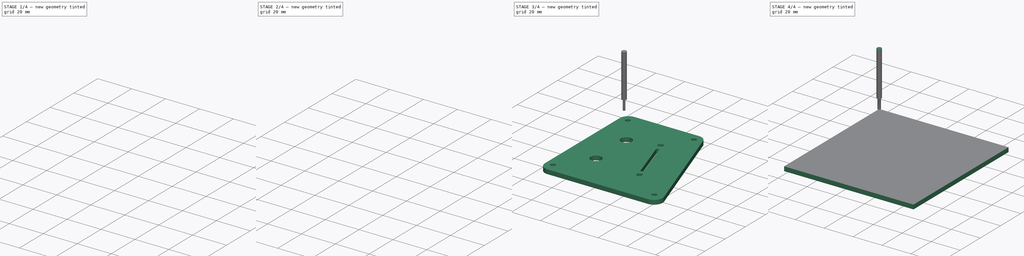
[diagram: build sequence overview — one tinted view per stage of 4, left to right]
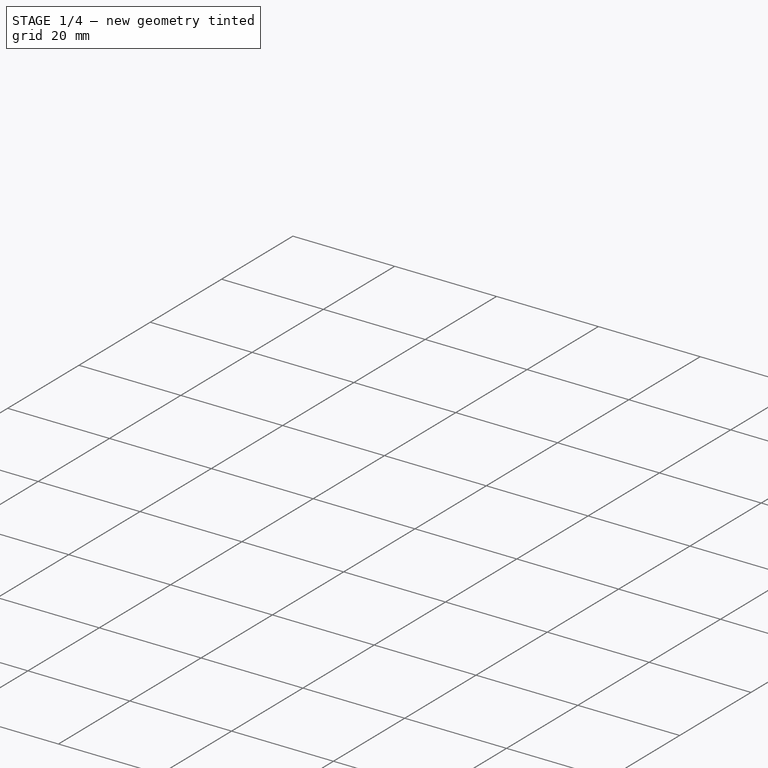
[diagram: stage 1 of 4 — iso view after this stage's code; geometry added in this stage tinted green]
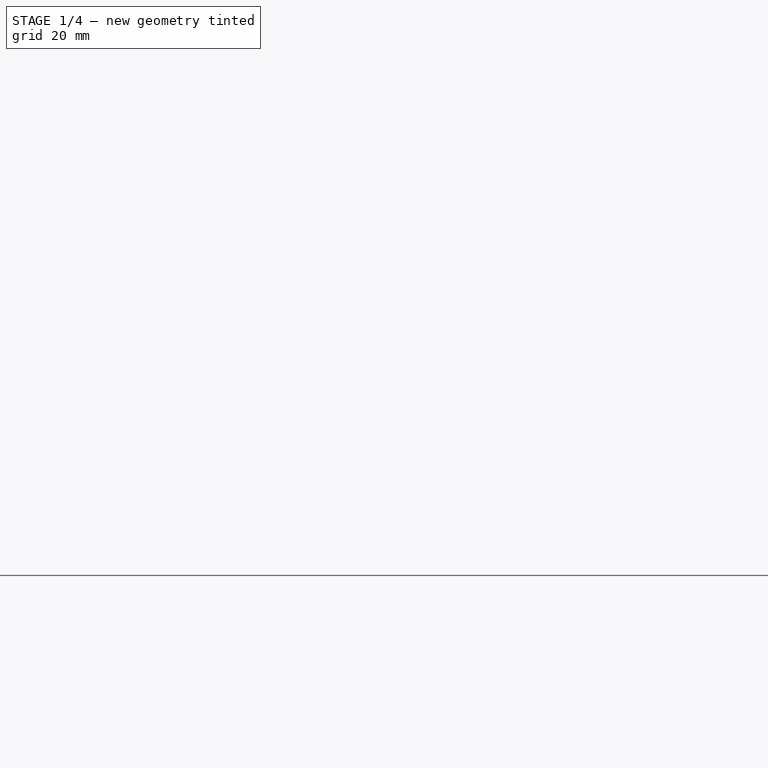
[diagram: stage 1 of 4 — front view after this stage's code; geometry added in this stage tinted green]
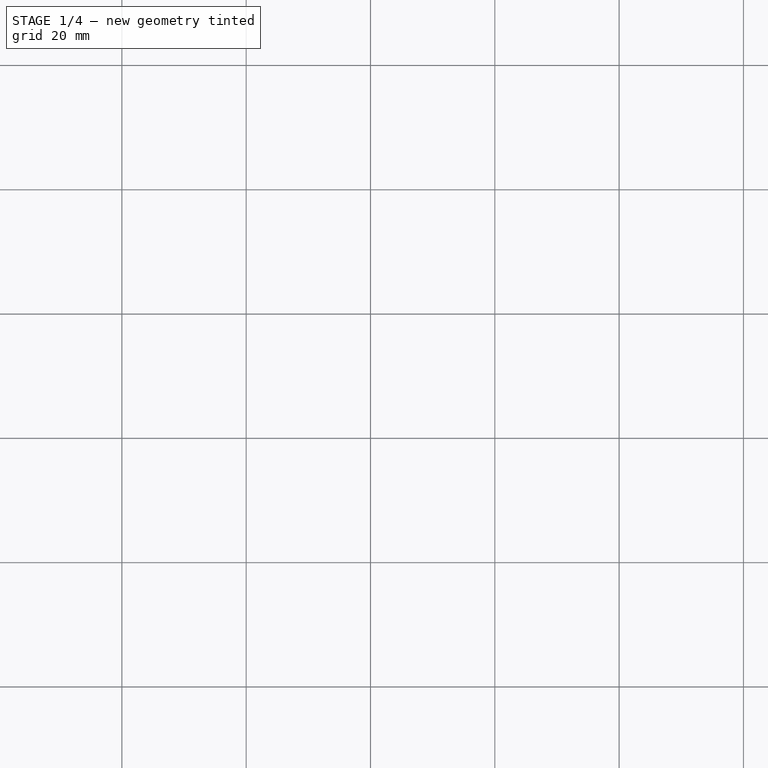
[diagram: stage 1 of 4 — top view after this stage's code; geometry added in this stage tinted green]
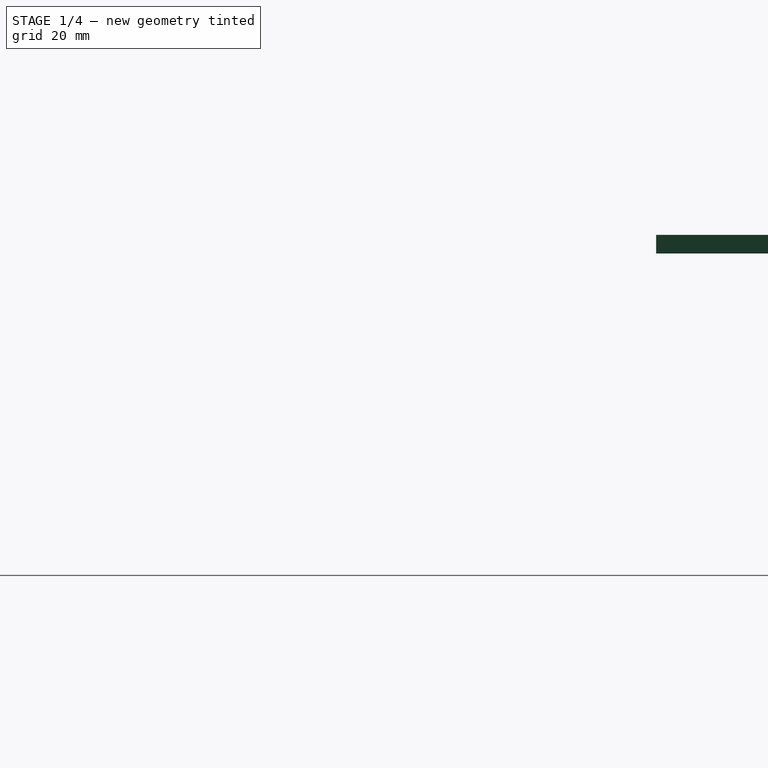
[diagram: stage 1 of 4 — right view after this stage's code; geometry added in this stage tinted green]
FCSTD DOCUMENT  (FreeCAD 0.21R33771 (Git))
Label: Control Cavity Tool Path
License: All rights reserved
LicenseURL: http://en.wikipedia.org/wiki/All_rights_reserved
objects: Path::FeaturePython×6, Sketcher::SketchObject×4, Part::FeaturePython×4, PartDesign::Pocket×3, App::DocumentObjectGroup×3, PartDesign::Pad×1, PartDesign::Fillet×1, PartDesign::Body×1, App::FeaturePython×1
note: 21 computed .brp shape members not serialized (recipe doc carries the construction recipe); baked Part::Feature solids carry a one-line shape summary decoded from their .brp

FEATURE [Sketcher::SketchObject] Sketch143  label="control plate mount pocket002"
  FullyConstrained = false
  MapMode = 5
  Placement = pos=(0,0,45) rot=(0,0,1;0rad)
  sketch-geometry (6):
    g0: LineSegment StartX=267.9 StartY=263.3 StartZ=0 EndX=267.9 EndY=243.3 EndZ=0
    g1: LineSegment StartX=267.9 StartY=243.3 StartZ=0 EndX=272.9 EndY=243.3 EndZ=0
    g2: LineSegment StartX=282 StartY=258 StartZ=0 EndX=337 EndY=258 EndZ=0
    g3: LineSegment StartX=282 StartY=258 StartZ=0 EndX=282 EndY=172 EndZ=0
    g4: LineSegment StartX=282 StartY=172 StartZ=0 EndX=365.925 EndY=172 EndZ=0
    g5: LineSegment StartX=365.925 StartY=172 StartZ=0 EndX=337 EndY=258 EndZ=0
  constraints (12):
    c: Vertical(g0)
    c: Coincident(g1,g0)
    c: Horizontal(g1)
    c: Horizontal(g2)
    c: Coincident(g3,g2)
    c: Vertical(g3)
    c: DistanceY(g3,g3) = 86
    c: Coincident(g4,g3)
    c: Horizontal(g4)
    c: Coincident(g5,g4)
    c: Coincident(g5,g2)
    c: Distance(g5) = 90.7339
FEATURE [PartDesign::Pad] Pad004  label="Main Plate"
  Direction = (0,0,1)
  Length = 3
  Length2 = 10
  Placement = pos=(0,0,45) rot=(0,0,1;0rad)
  Profile = -> Sketch143
  ReferenceAxis = -> Sketch143 [N_Axis]
  Type = 0
FEATURE [Path::FeaturePython] _mm_Endmill  label="2mm_Endmill001"  # Path/CAM operation (typed FeaturePython)
  HorizFeed = 3.33333
  HorizRapid = 0
  SpindleDir = 0
  SpindleSpeed = 10000
  Tool = -> ToolBit001
  ToolNumber = 2
  VertFeed = 2
  VertRapid = 0
  expr: HorizRapid = SetupSheet.HorizRapid
  expr: VertRapid = SetupSheet.VertRapid
FEATURE [Path::FeaturePython] Helix  # Path/CAM operation (typed FeaturePython)
  Active = true
  Base = -> [Clone]
  ClearanceHeight = 5
  CoolantMode = 0
  CycleTime = 00:03:30
  Direction = 0
  FinalDepth = -3
  OffsetExtra = 0
  OpFinalDepth = -3
  OpStartDepth = 0
  OpStockZMax = 0
  OpStockZMin = -3
  OpToolDiameter = 2
  SafeHeight = 3
  StartDepth = 0
  StartRadius = 0
  StartSide = 0
  StepDown = 2
  StepOver = 50
  ToolController = -> _mm_Endmill
  expr: ClearanceHeight = OpStockZMax + SetupSheet.ClearanceHeightOffset
  expr: FinalDepth = OpFinalDepth
  expr: SafeHeight = OpStockZMax + SetupSheet.SafeHeightOffset
  expr: StartDepth = OpStartDepth
  expr: StepDown = OpToolDiameter
FEATURE [Path::FeaturePython] Profile  # Path/CAM operation (typed FeaturePython)
  Active = true
  AreaParams:
    Tolerance = 1e-07
    FitArcs = True
    Simplify = False
    CleanDistance = 0.0
    Accuracy = 0.01
    Unit = 1.0
    MinArcPoints = 4
    MaxArcPoints = 100
    ClipperScale = 10000000.0
    Fill = 0
    Coplanar = 0
    Reorient = True
    Outline = False
    Explode = False
    OpenMode = 0
    Deflection = 0.01
    SubjectFill = 0
    ClipFill = 0
    Offset = 1.0
    ExtraPass = 0
    Stepover = 0.0
    LastStepover = 0.0
    JoinType = 0
    EndType = 0
    MiterLimit = 2.0
    RoundPrecision = 0.0
    PocketMode = 0
    ToolRadius = 1.0
    PocketExtraOffset = 0.0
    PocketStepover = 0.0
    PocketLastStepover = 0.0
    FromCenter = False
    Angle = 45.0
    AngleShift = 0.0
    Shift = 0.0
    Thicken = False
    SectionCount = -1
    Stepdown = 1.0
    SectionOffset = 0.0
    SectionTolerance = 1e-07
    SectionMode = 2
    Project = False
  Base = -> [Clone]
  ClearanceHeight = 5
  CoolantMode = 0
  CycleTime = 00:03:30
  Direction = 0
  FinalDepth = -3
  HandleMultipleFeatures = 0
  JoinType = 0
  MiterLimit = 0.1
  OffsetExtra = 0
  OpFinalDepth = -3
  OpStartDepth = 0
  OpStockZMax = 0
  OpStockZMin = -3
  OpToolDiameter = 2
  PathParams = {'orientation': 1, 'feedrate': 3.3333333333333335, 'feedrate_v': 2.0, 'verbose': True, 'resume_height': 3.0, 'retraction': 5.0, 'return_end': True, 'preamble': False}
  SafeHeight = 3
  Side = 0
  SplitArcs = false
  StartDepth = 0
  StartPoint = (0,0,0)
  StepDown = 2
  ToolController = -> _mm_Endmill
  UseComp = true
  UseStartPoint = false
  processCircles = false
  processHoles = false
  processPerimeter = true
  expr: ClearanceHeight = OpStockZMax + SetupSheet.ClearanceHeightOffset
  expr: FinalDepth = OpFinalDepth
  expr: SafeHeight = OpStockZMax + SetupSheet.SafeHeightOffset
  expr: StartDepth = OpStartDepth
  expr: StepDown = OpToolDiameter
FEATURE [Part::FeaturePython] ToolBit002  label="1.5mm_endmill"  # Path/CAM toolbit (typed FeaturePython)
  BitPropertyNames = Chipload | CuttingEdgeHeight | Diameter | Flutes | Length | Material | ShankDiameter | SpindleDirection
  BitShape = C:/Program Files/FreeCAD 0.21/Mod\Path\Tools\Shape\endmill.fcstd
  Chipload = 0
  CuttingEdgeHeight = 7
  Diameter = 1.5
  File = <userpath>/AppData/Roaming/FreeCAD/Macro/Bit/1.5mm_endmill.fctb
  Flutes = 0
  Length = 37
  Material = 0
  ShankDiameter = 3.15
  ShapeName = endmill
  SpindleDirection = 0
FEATURE [Path::FeaturePython] __5mm_endmill  label="1.5mm_endmill001"  # Path/CAM operation (typed FeaturePython)
  HorizFeed = 3.33333
  HorizRapid = 0
  SpindleDir = 0
  SpindleSpeed = 10000
  Tool = -> ToolBit002
  ToolNumber = 3
  VertFeed = 2
  VertRapid = 0
  expr: HorizRapid = SetupSheet.HorizRapid
  expr: VertRapid = SetupSheet.VertRapid
FEATURE [App::DocumentObjectGroup] Tools
  Group = -> [_mm_Endmill,__5mm_endmill]
FEATURE [Path::FeaturePython] Profile001  # Path/CAM operation (typed FeaturePython)
  Active = true
  AreaParams:
    Tolerance = 1e-07
    FitArcs = True
    Simplify = False
    CleanDistance = 0.0
    Accuracy = 0.01
    Unit = 1.0
    MinArcPoints = 4
    MaxArcPoints = 100
    ClipperScale = 10000000.0
    Fill = 0
    Coplanar = 0
    Reorient = True
    Outline = False
    Explode = False
    OpenMode = 0
    Deflection = 0.01
    SubjectFill = 0
    ClipFill = 0
    Offset = -0.75
    ExtraPass = 0
    Stepover = 0.0
    LastStepover = 0.0
    JoinType = 0
    EndType = 0
    MiterLimit = 2.0
    RoundPrecision = 0.0
    PocketMode = 0
    ToolRadius = 1.0
    PocketExtraOffset = 0.0
    PocketStepover = 0.0
    PocketLastStepover = 0.0
    FromCenter = False
    Angle = 45.0
    AngleShift = 0.0
    Shift = 0.0
    Thicken = False
    SectionCount = -1
    Stepdown = 1.0
    SectionOffset = 0.0
    SectionTolerance = 1e-07
    SectionMode = 2
    Project = False
  Base = -> [Clone]
  ClearanceHeight = 5
  CoolantMode = 0
  CycleTime = 00:01:04
  Direction = 0
  FinalDepth = -3
  HandleMultipleFeatures = 0
  JoinType = 0
  MiterLimit = 0.1
  OffsetExtra = 0
  OpFinalDepth = -3
  OpStartDepth = 0
  OpStockZMax = 0
  OpStockZMin = -3
  OpToolDiameter = 1.5
  PathParams = {'orientation': 1, 'feedrate': 3.3333333333333335, 'feedrate_v': 2.0, 'verbose': True, 'resume_height': 3.0, 'retraction': 5.0, 'return_end': True, 'preamble': False}
  SafeHeight = 3
  Side = 1
  SplitArcs = false
  StartDepth = 0
  StartPoint = (0,0,0)
  StepDown = 1.5
  ToolController = -> __5mm_endmill
  UseComp = true
  UseStartPoint = false
  processCircles = false
  processHoles = false
  processPerimeter = true
  expr: ClearanceHeight = OpStockZMax + SetupSheet.ClearanceHeightOffset
  expr: FinalDepth = OpFinalDepth
  expr: SafeHeight = OpStockZMax + SetupSheet.SafeHeightOffset
  expr: StartDepth = OpStartDepth
  expr: StepDown = OpToolDiameter
FEATURE [App::DocumentObjectGroup] Operations
  Group = -> [Helix,Profile,Profile001]
FEATURE [Path::FeaturePython] Job  # Path/CAM operation (typed FeaturePython)
  CycleTime = 00:08:04
  Fixtures = G54
  GeometryTolerance = 0.01
  JobType = 0
  LastPostProcessDate = 2024-12-15 18:01:29.682588
  LastPostProcessOutput = <userpath>\Desktop\Control Cavity Tool Path.nc
  Model = -> Model
  Operations = -> Operations
  OrderOutputBy = 0
  PostProcessor = 1
  SetupSheet = -> SetupSheet
  SplitOutput = false
  Stock = -> Stock001
  Tools = -> Tools
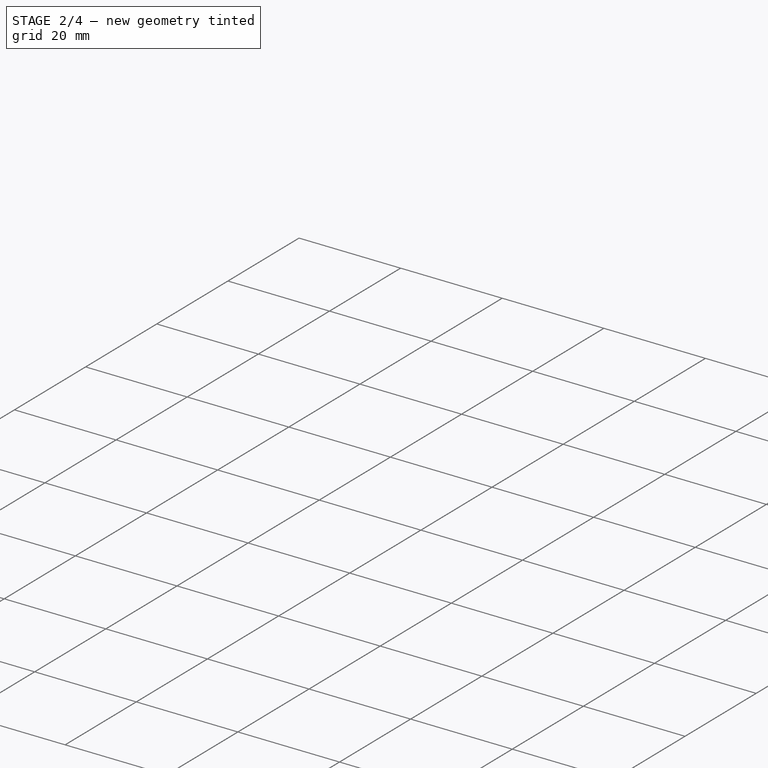
[diagram: stage 2 of 4 — iso view after this stage's code; geometry added in this stage tinted green]
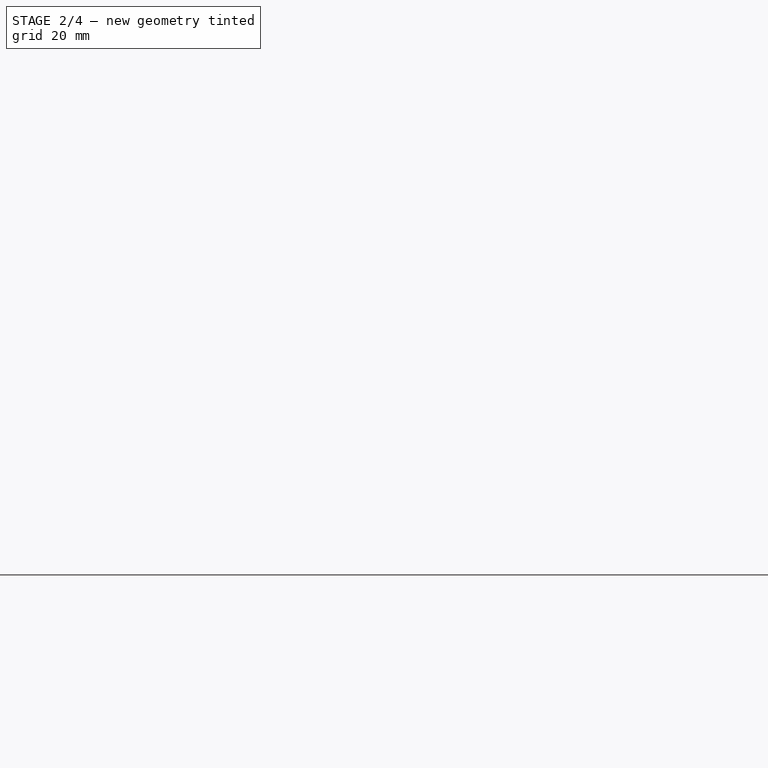
[diagram: stage 2 of 4 — front view after this stage's code; geometry added in this stage tinted green]
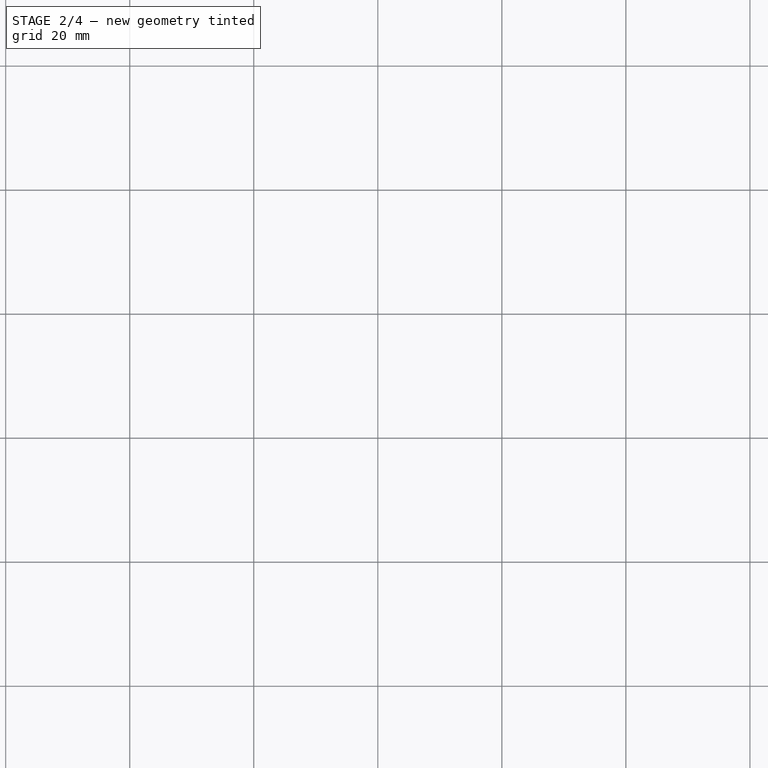
[diagram: stage 2 of 4 — top view after this stage's code; geometry added in this stage tinted green]
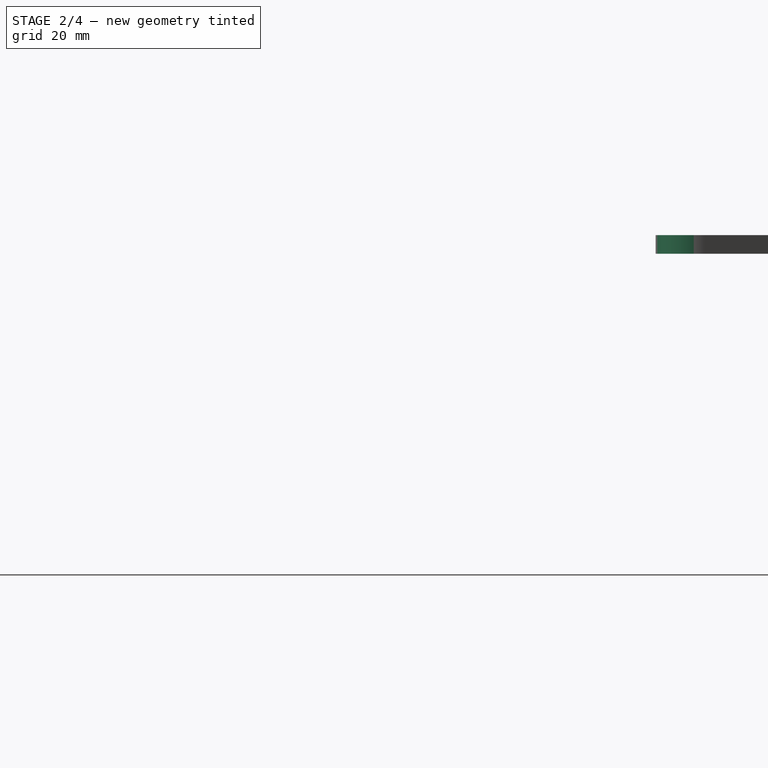
[diagram: stage 2 of 4 — right view after this stage's code; geometry added in this stage tinted green]
FEATURE [PartDesign::Fillet] Fillet016  label="Corner edges "
  Base = -> Pad004 [Edge5,Edge8,Edge1,Edge2]
  BaseFeature = -> Pad004
  Placement = pos=(0,0,45) rot=(0,0,1;0rad)
  Radius = 6
  SupportTransform = false
  UseAllEdges = false
FEATURE [Sketcher::SketchObject] Sketch144  label="Pot holes"
  FullyConstrained = false
  MapMode = 5
  Placement = pos=(0,0,48) rot=(0,0,1;0rad)
  Support = -> [Fillet016]
  sketch-geometry (3):
    g0: Circle CenterX=302 CenterY=230 CenterZ=0 NormalX=0 NormalY=0 NormalZ=1 AngleXU=0 Radius=3.75
    g1: LineSegment StartX=310.5 StartY=200 StartZ=0 EndX=302 EndY=200 EndZ=0
    g2: Circle CenterX=302 CenterY=200 CenterZ=0 NormalX=0 NormalY=0 NormalZ=1 AngleXU=0 Radius=3.75
  constraints (4):
    c: Diameter(g0) = 7.5
    c: Horizontal(g1)
    c: Coincident(g2,g1)
    c: Diameter(g2) = 7.5
FEATURE [PartDesign::Pocket] Pocket031  label="Potentiometer holes"
  BaseFeature = -> Fillet016
  Direction = (0,0,-1)
  Length = 5
  Length2 = 5
  Placement = pos=(0,0,45) rot=(0,0,1;0rad)
  Profile = -> Sketch144
  ReferenceAxis = -> Sketch144 [N_Axis]
  Type = 0
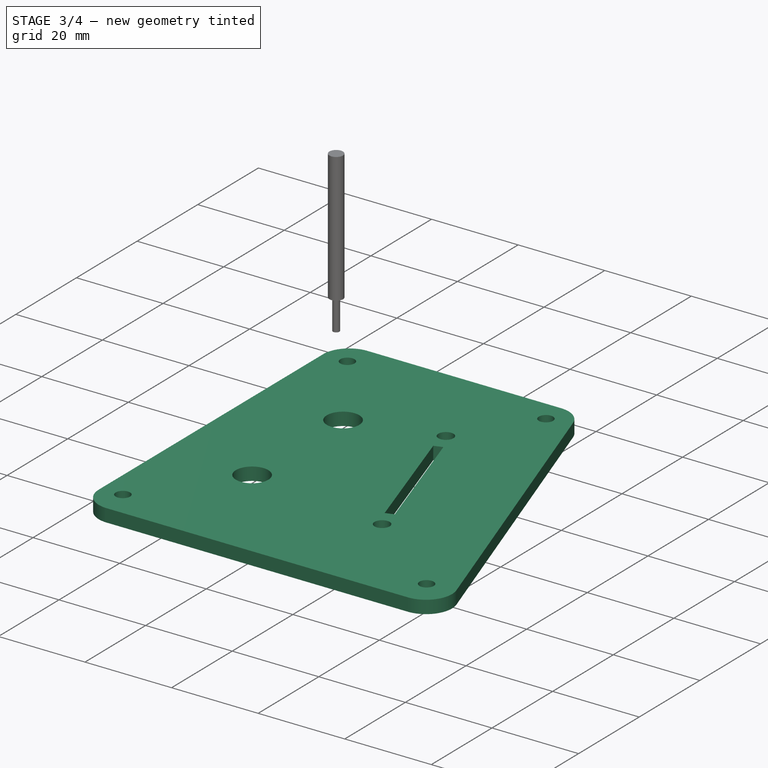
[diagram: stage 3 of 4 — iso view after this stage's code; geometry added in this stage tinted green]
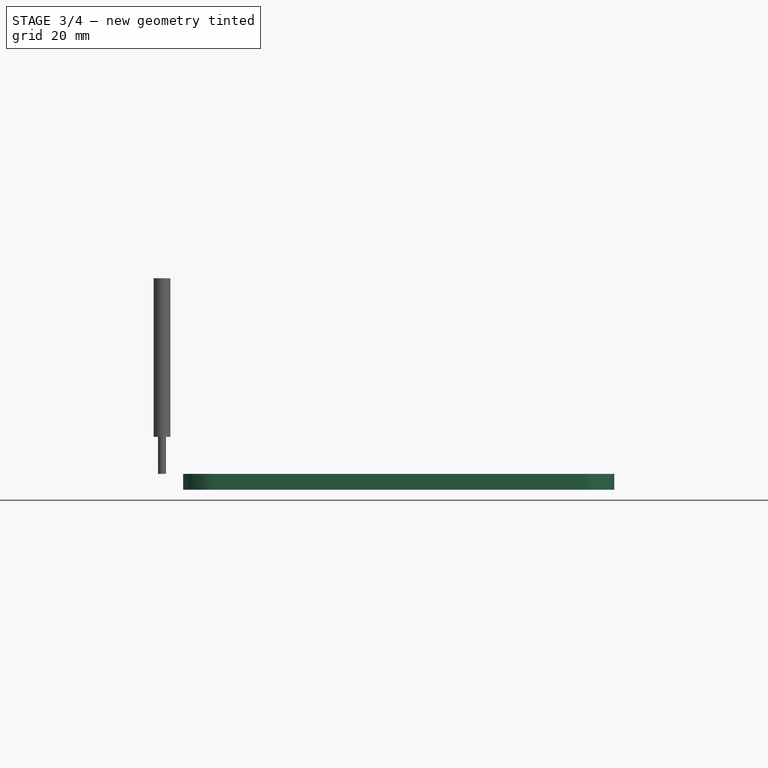
[diagram: stage 3 of 4 — front view after this stage's code; geometry added in this stage tinted green]
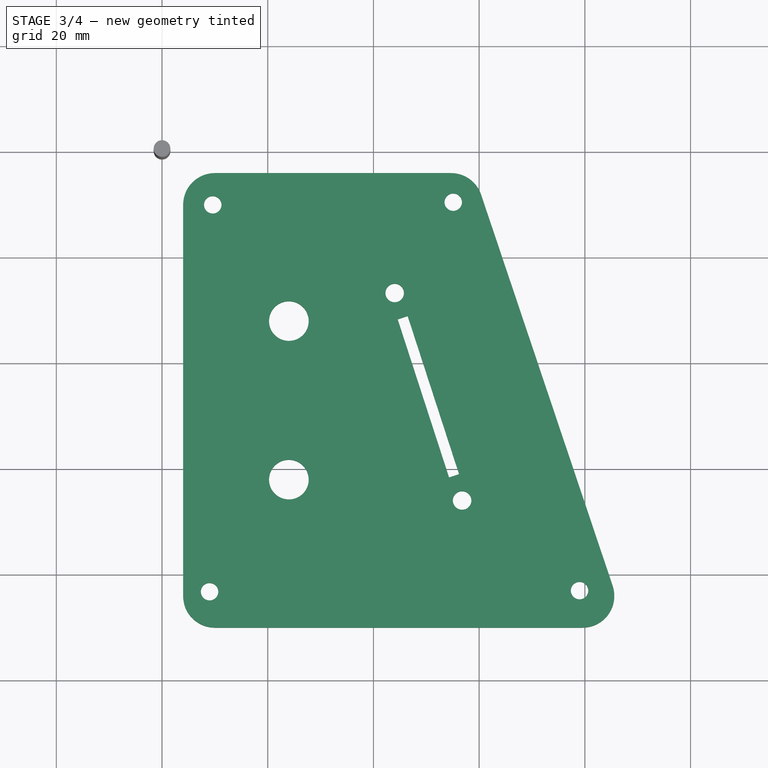
[diagram: stage 3 of 4 — top view after this stage's code; geometry added in this stage tinted green]
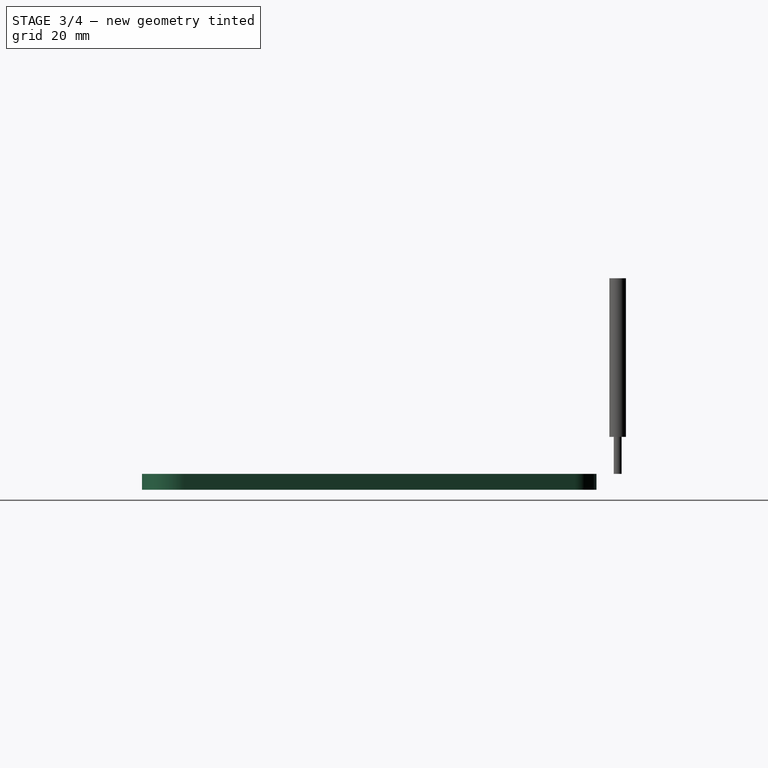
[diagram: stage 3 of 4 — right view after this stage's code; geometry added in this stage tinted green]
FEATURE [Sketcher::SketchObject] Sketch145  label="Selector Switch Slit and mounting holes"
  FullyConstrained = false
  MapMode = 5
  Placement = pos=(0,0,48) rot=(0,0,1;0rad)
  Support = -> [Pocket031]
  sketch-geometry (18):
    g0: LineSegment StartX=326.216 StartY=240.209 StartZ=0 EndX=325.616 EndY=240.209 EndZ=0
    g1: LineSegment StartX=326.216 StartY=240.209 StartZ=0 EndX=320.985 EndY=238.509 EndZ=0
    g2: LineSegment StartX=320.985 StartY=238.509 StartZ=0 EndX=322.023 EndY=235.313 EndZ=0
    g3: Circle CenterX=322.023 CenterY=235.313 CenterZ=0 NormalX=0 NormalY=0 NormalZ=1 AngleXU=0 Radius=1.75
    g4: LineSegment StartX=341.048 StartY=194.558 StartZ=0 EndX=339.648 EndY=194.558 EndZ=0
    g5: LineSegment StartX=341.048 StartY=194.558 StartZ=0 EndX=335.818 EndY=192.858 EndZ=0
    g6: LineSegment StartX=335.818 StartY=192.858 StartZ=0 EndX=334.779 EndY=196.054 EndZ=0
    g7: Circle CenterX=334.779 CenterY=196.054 CenterZ=0 NormalX=0 NormalY=0 NormalZ=1 AngleXU=0 Radius=1.75
    g8: LineSegment StartX=322.023 StartY=235.313 StartZ=0 EndX=334.779 EndY=196.054 EndZ=0
    g9: LineSegment StartX=334.238 StartY=197.718 StartZ=0 EndX=333.263 EndY=200.72 EndZ=0
    g10: LineSegment StartX=333.263 StartY=200.72 StartZ=0 EndX=334.214 EndY=201.029 EndZ=0
    g11: LineSegment StartX=322.564 StartY=233.649 StartZ=0 EndX=323.538 EndY=230.65 EndZ=0
    g12: LineSegment StartX=334.238 StartY=197.718 StartZ=0 EndX=333.263 EndY=200.72 EndZ=0
    g13: LineSegment StartX=334.214 StartY=201.029 StartZ=0 EndX=324.49 EndY=230.959 EndZ=0
    g14: LineSegment StartX=333.263 StartY=200.72 StartZ=0 EndX=332.312 EndY=200.412 EndZ=0
    g15: LineSegment StartX=322.587 StartY=230.341 StartZ=0 EndX=332.312 EndY=200.412 EndZ=0
    g16: LineSegment StartX=323.538 StartY=230.65 StartZ=0 EndX=322.587 EndY=230.341 EndZ=0
    g17: LineSegment StartX=323.538 StartY=230.65 StartZ=0 EndX=324.49 EndY=230.959 EndZ=0
  constraints (44):
    c: Horizontal(g0)
    c: Coincident(g1,g0)
    c: DistanceX(g0,g0) = 0.6
    c: Angle(g0,g1) = 0.314159
    c: Distance(g1) = 5.5
    c: Coincident(g2,g1)
    c: Coincident(g3,g2)
    c: Diameter(g3) = 3.5
    c: Angle(g2,g0) = 1.25664
    c: Distance(g2) = 3.36
    c: Horizontal(g4)
    c: Coincident(g5,g4)
    c: DistanceX(g4,g4) = 1.4
    c: Distance(g5) = 5.5
    c: Angle(g4,g5) = 0.314159
    c: Coincident(g6,g5)
    c: Distance(g6) = 3.36
    c: Angle(g6,g4) = 1.25664
    c: Coincident(g7,g6)
    c: Diameter(g7) = 3.5
    c: Coincident(g8,g3)
    c: Coincident(g8,g7)
    c: PointOnObject(g9,g7)
    c: PointOnObject(g9,g8)
    c: Coincident(g9,g10)
    c: PointOnObject(g11,g8)
    c: PointOnObject(g11,g8)
    c: Distance(g11) = 3.15373
    c: Coincident(g12,g9)
    c: Coincident(g12,g10)
    c: Distance(g12) = 3.1567
    c: Distance(g10) = 1
    c: Angle(g12,g10) = 1.5708
    c: Coincident(g13,g10)
    c: Coincident(g14,g10)
    c: Distance(g14) = 1
    c: Angle(g14,g12) = 1.5708
    c: Coincident(g15,g14)
    c: Distance(g13) = 31.4696
    c: Coincident(g16,g11)
    c: Coincident(g16,g15)
    c: Coincident(g17,g16)
    c: Coincident(g17,g13)
    c: Distance(g16) = 1
FEATURE [PartDesign::Pocket] Pocket058
  BaseFeature = -> Pocket031
  Direction = (0,0,-1)
  Length = 3
  Length2 = 5
  Placement = pos=(0,0,45) rot=(0,0,1;0rad)
  Profile = -> Sketch145
  ReferenceAxis = -> Sketch145 [N_Axis]
  Type = 0
FEATURE [Sketcher::SketchObject] Sketch191
  FullyConstrained = false
  MapMode = 5
  Placement = pos=(0,0,48) rot=(0,0,1;0rad)
  Support = -> [Pocket058]
  sketch-geometry (8):
    g0: Circle CenterX=287 CenterY=178.79 CenterZ=0 NormalX=0 NormalY=0 NormalZ=1 AngleXU=0 Radius=1.65
    g1: Circle CenterX=287.6 CenterY=252 CenterZ=0 NormalX=0 NormalY=0 NormalZ=1 AngleXU=0 Radius=1.65
    g2: Circle CenterX=333.1 CenterY=252.5 CenterZ=0 NormalX=0 NormalY=0 NormalZ=1 AngleXU=0 Radius=1.65
    g3: Circle CenterX=357 CenterY=179 CenterZ=0 NormalX=0 NormalY=0 NormalZ=1 AngleXU=0 Radius=1.65
    g4: LineSegment StartX=336.506 StartY=256.572 StartZ=0 EndX=333.1 EndY=252.5 EndZ=0
    g5: LineSegment StartX=284 StartY=256.277 StartZ=0 EndX=287.6 EndY=252 EndZ=0
    g6: LineSegment StartX=283.266 StartY=174.455 StartZ=0 EndX=287 EndY=178.792 EndZ=0
    g7: LineSegment StartX=350.571 StartY=183.276 StartZ=0 EndX=357 EndY=179 EndZ=0
  constraints (4):
    c: Equal(g1,g2)
    c: Equal(g1,g0)
    c: Equal(g1,g3)
    c: Diameter(g1) = 3.3
FEATURE [PartDesign::Pocket] Pocket060
  BaseFeature = -> Pocket058
  Direction = (0,0,-1)
  Length = 3
  Length2 = 5
  Placement = pos=(0,0,45) rot=(0,0,1;0rad)
  Profile = -> Sketch191
  ReferenceAxis = -> Sketch191 [N_Axis]
  Type = 0
FEATURE [PartDesign::Body] Body015  label="Control Cavity Plate"
  Group = -> [Sketch143,Pad004,Fillet016,Sketch144,Pocket031,Sketch145,Pocket058,Sketch191,Pocket060]
  Origin = -> Origin133
  Placement = pos=(0,0,-2.9) rot=(0,0,1;0rad)
  Tip = -> Pocket060
FEATURE [App::FeaturePython] SetupSheet  # Path/CAM operation (typed FeaturePython)
  ClearanceHeightExpression = OpStockZMax+SetupSheet.ClearanceHeightOffset
  ClearanceHeightOffset = 5
  CoolantMode = 0
  CoolantModes = None | Flood | Mist
  FinalDepthExpression = OpFinalDepth
  HorizRapid = 0
  SafeHeightExpression = OpStockZMax+SetupSheet.SafeHeightOffset
  SafeHeightOffset = 3
  StartDepthExpression = OpStartDepth
  StepDownExpression = OpToolDiameter
  VertRapid = 0
FEATURE [Part::FeaturePython] Clone  label="Model-Control Cavity Plate"  # Draft clone (typed FeaturePython)
  AttacherType = Attacher::AttachEngine3D
  Fuse = false
  Objects = -> [Body015]
  PathResource = Model
  Placement = pos=(-278,-262,-48) rot=(0,0,1;0rad)
  Scale = (1,1,1)
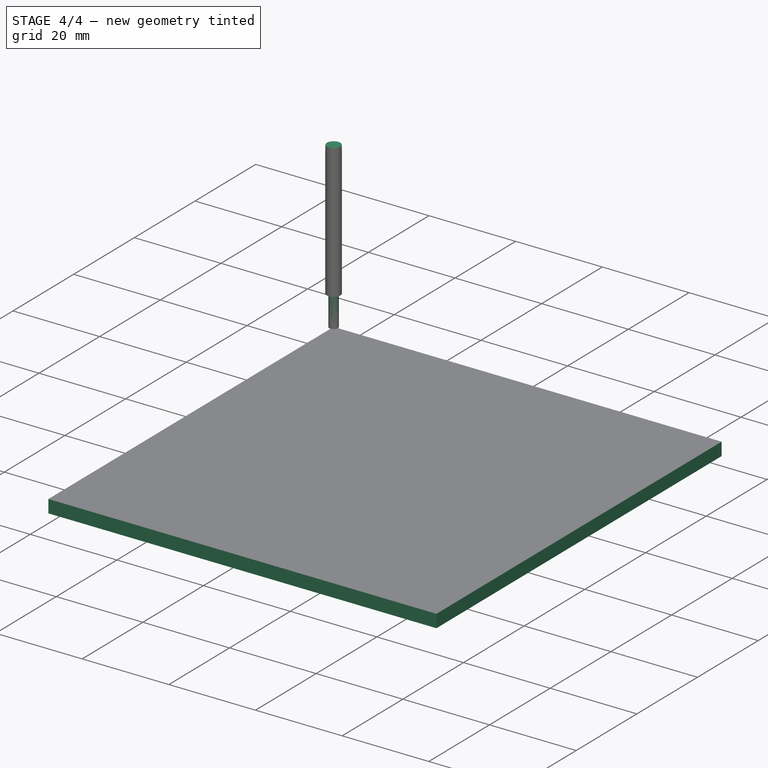
[diagram: stage 4 of 4 — iso view after this stage's code; geometry added in this stage tinted green]
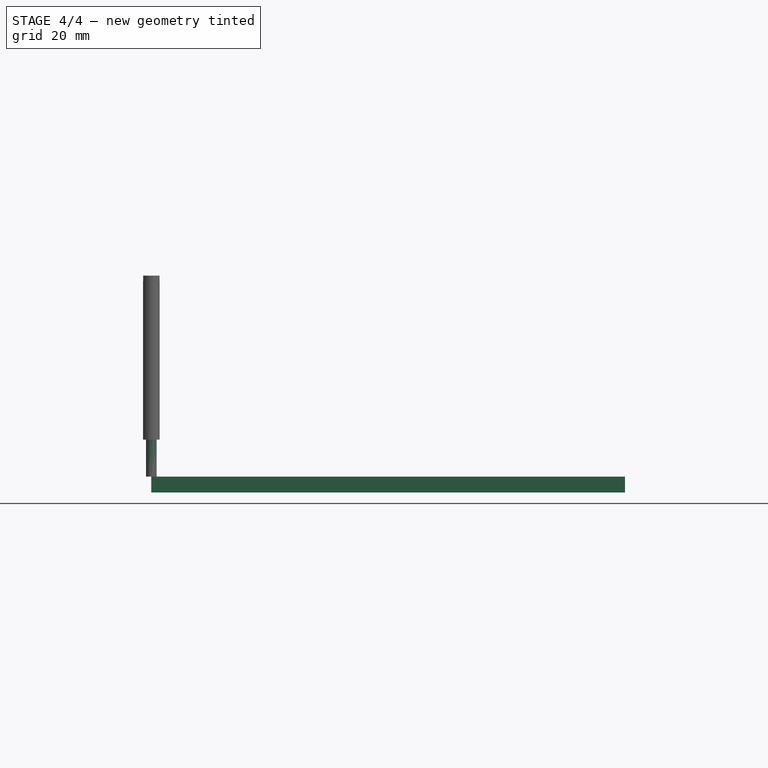
[diagram: stage 4 of 4 — front view after this stage's code; geometry added in this stage tinted green]
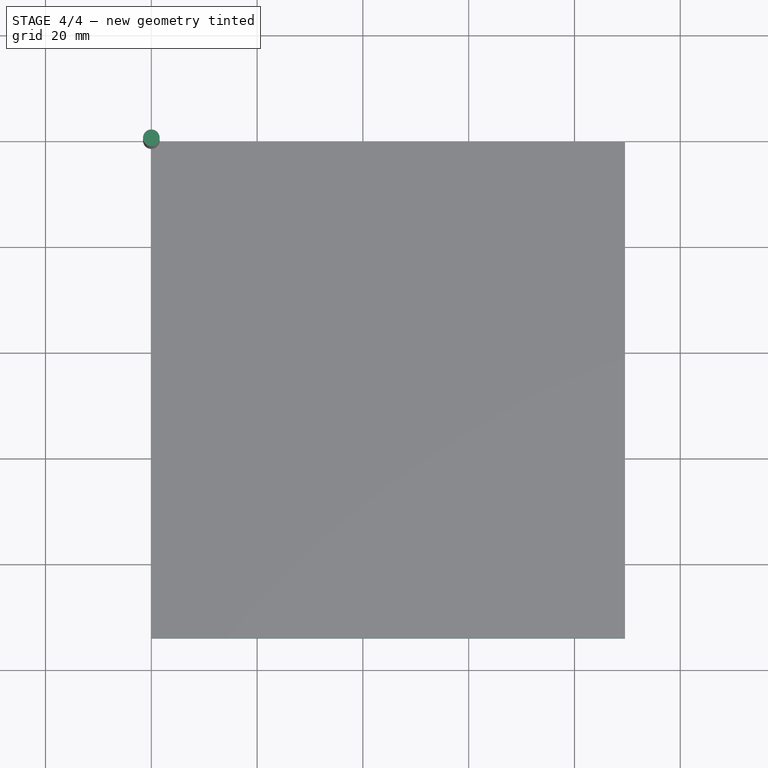
[diagram: stage 4 of 4 — top view after this stage's code; geometry added in this stage tinted green]
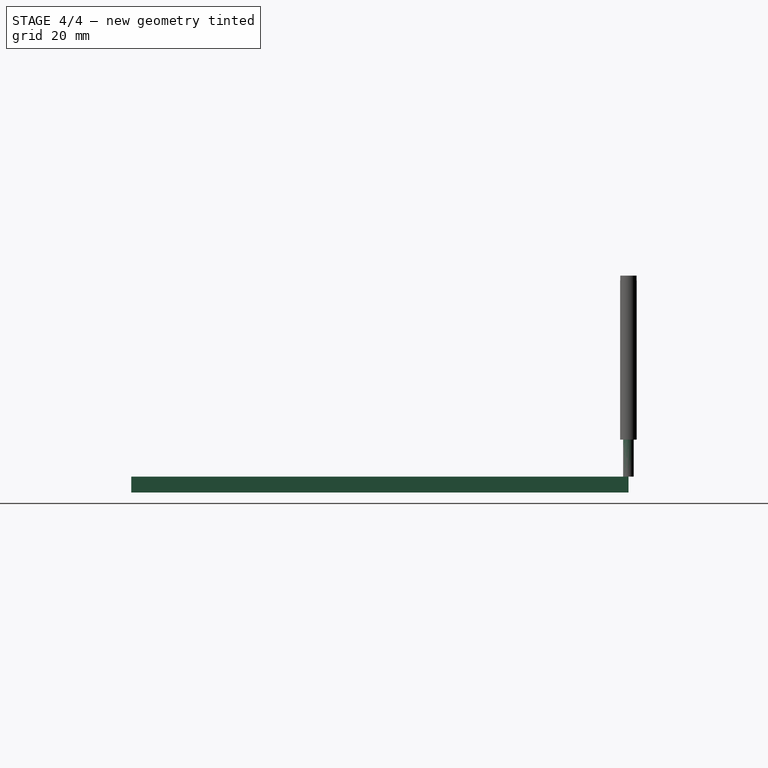
[diagram: stage 4 of 4 — right view after this stage's code; geometry added in this stage tinted green]
FEATURE [App::DocumentObjectGroup] Model
  Group = -> [Clone]
FEATURE [Part::FeaturePython] Stock001  # WARN: FeaturePython — macro-defined, semantics opaque (R4)
  Base = -> Model
  ExtXneg = 4
  ExtXpos = 4
  ExtYneg = 4
  ExtYpos = 4
  ExtZneg = 0
  ExtZpos = 0
  Placement = pos=(4,-90,-3) rot=(0,0,1;0rad)
  StockType = FromBase
FEATURE [Part::FeaturePython] ToolBit001  label="2mm_Endmill"  # Path/CAM toolbit (typed FeaturePython)
  BitPropertyNames = Chipload | CuttingEdgeHeight | Diameter | Flutes | Length | Material | ShankDiameter | SpindleDirection
  BitShape = C:/Program Files/FreeCAD 0.21/Mod\Path\Tools\Shape\endmill.fcstd
  Chipload = 0
  CuttingEdgeHeight = 11
  Diameter = 2
  File = <userpath>/AppData/Roaming/FreeCAD/Macro/Bit/2mm_Endmill.fctb
  Flutes = 0
  Length = 38
  Material = 0
  ShankDiameter = 3.1
  ShapeName = endmill
  SpindleDirection = 0
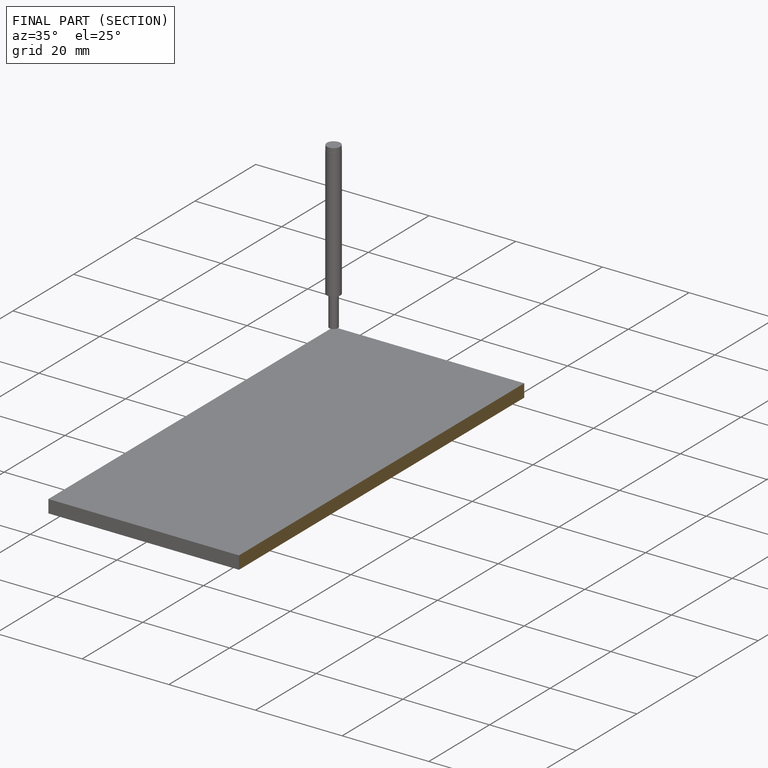
[diagram: finished part — half-section view (interior)]
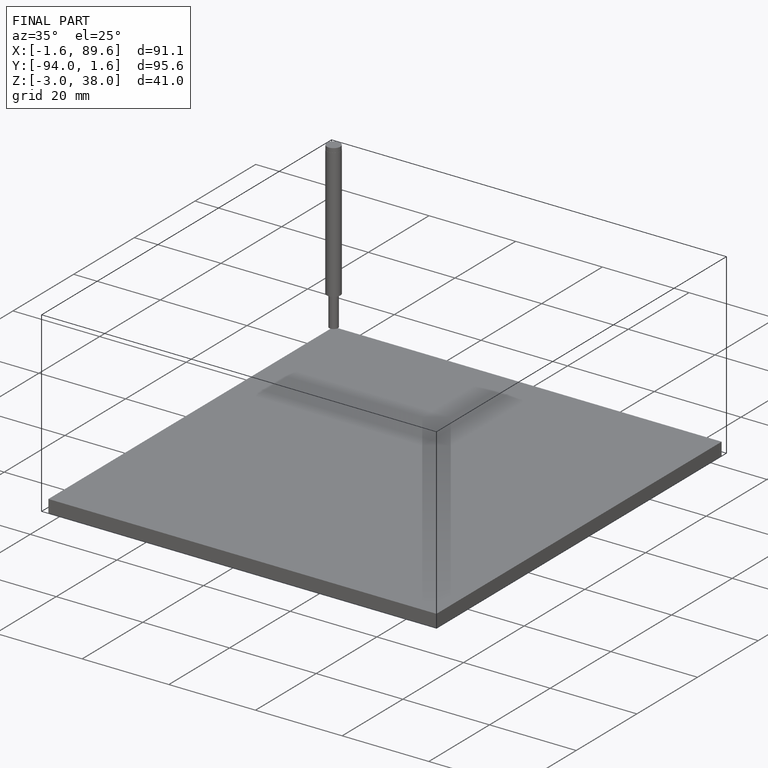
[diagram: finished part — iso view with bounding-box wireframe]
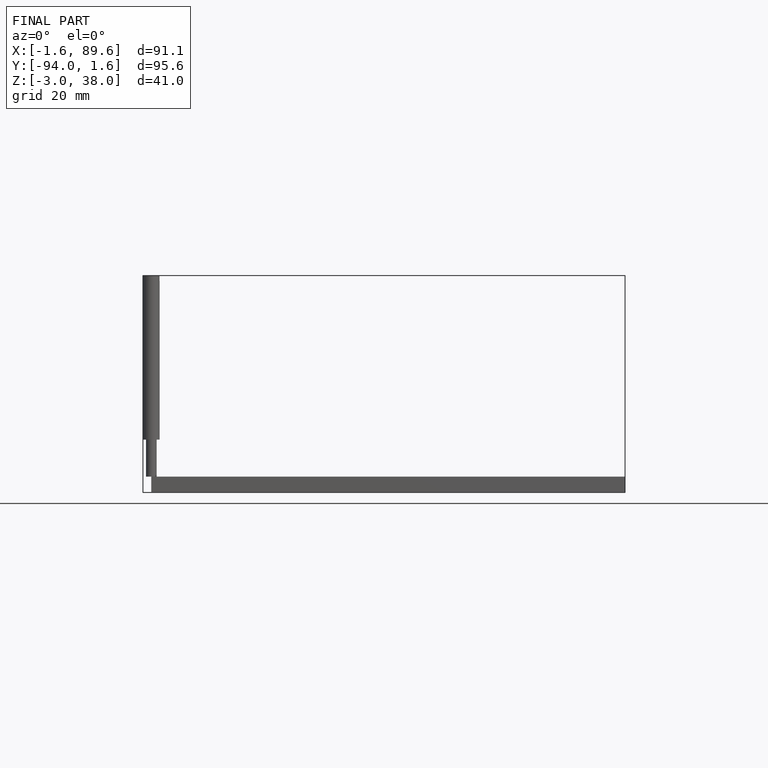
[diagram: finished part — front view with bounding-box wireframe]
